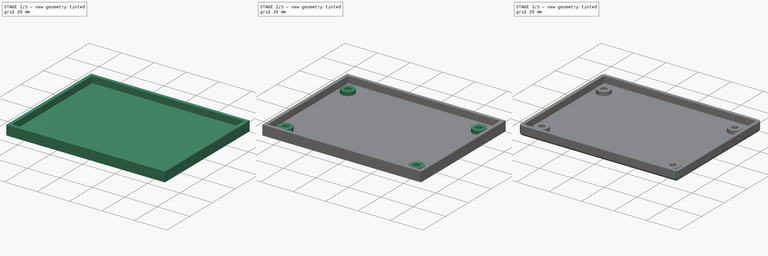
[diagram: build sequence overview — one tinted view per stage of 3, left to right]
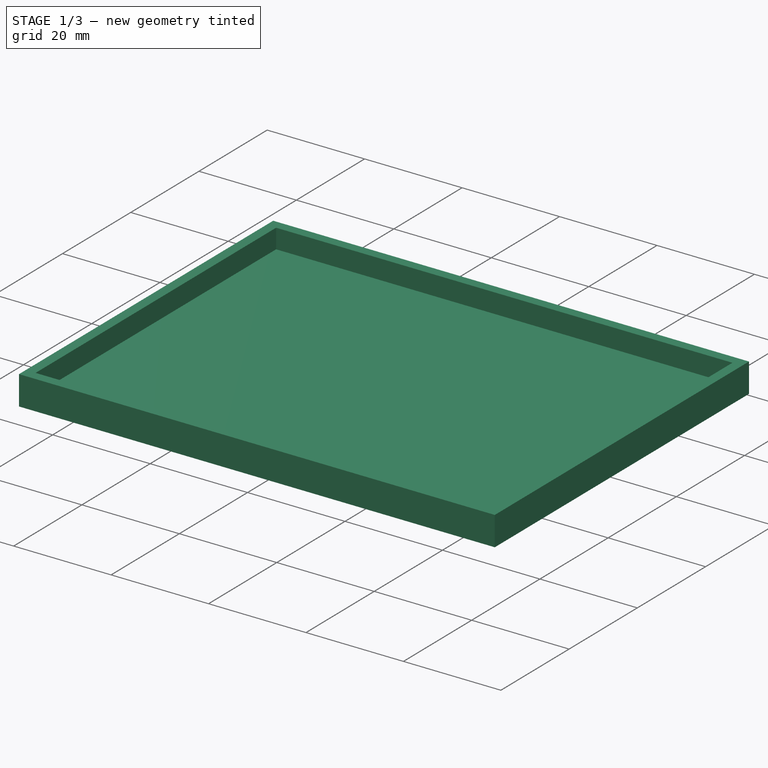
[diagram: stage 1 of 3 — iso view after this stage's code; geometry added in this stage tinted green]
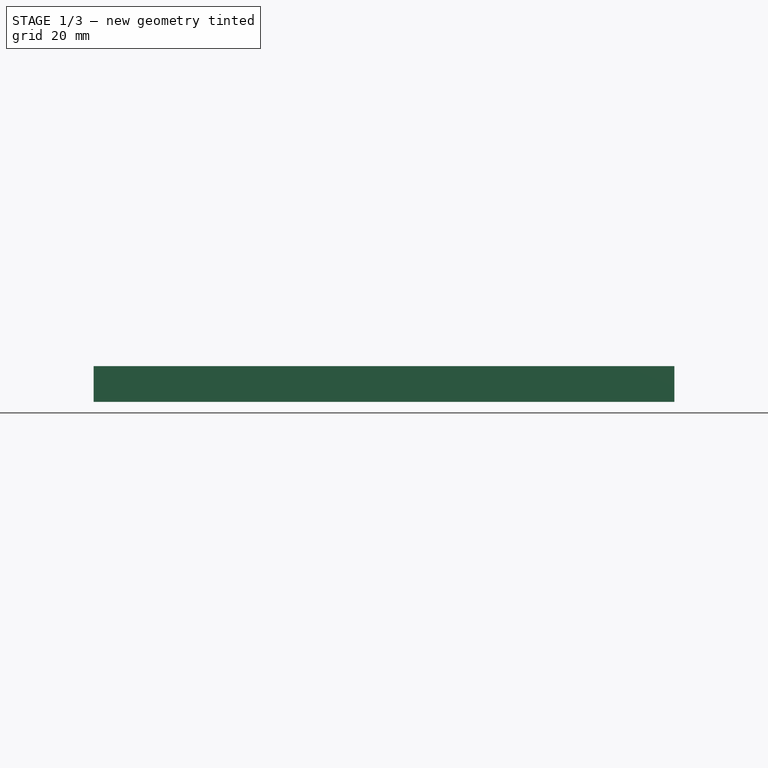
[diagram: stage 1 of 3 — front view after this stage's code; geometry added in this stage tinted green]
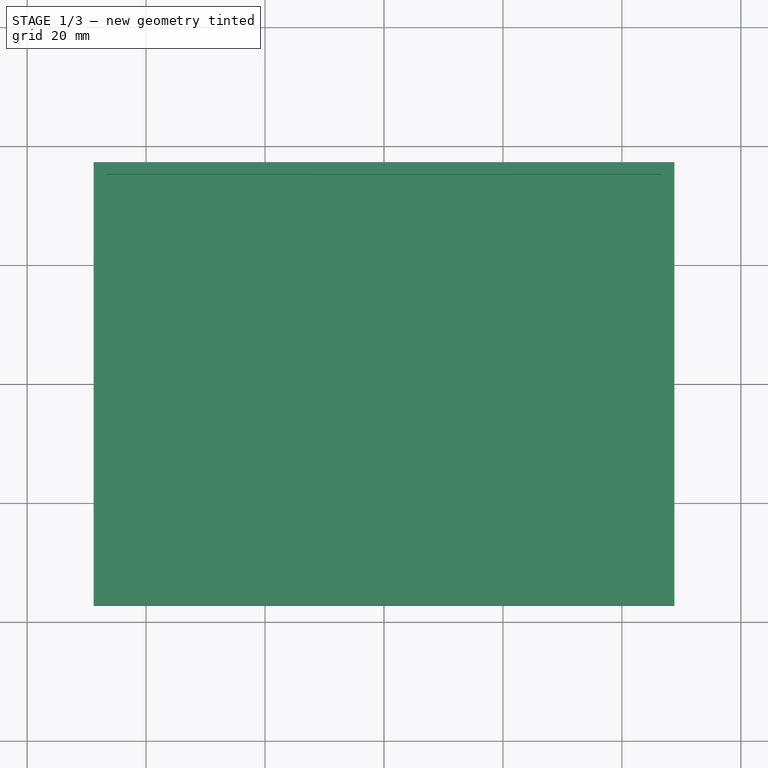
[diagram: stage 1 of 3 — top view after this stage's code; geometry added in this stage tinted green]
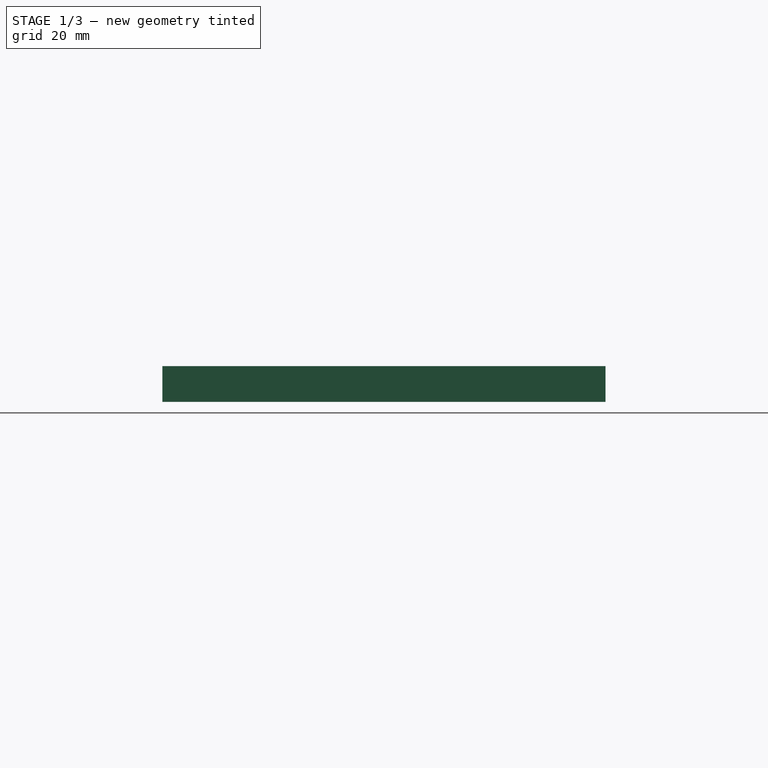
[diagram: stage 1 of 3 — right view after this stage's code; geometry added in this stage tinted green]
FCSTD DOCUMENT  (FreeCAD 0.16RUnknown)
Label: mega-prog-bot
License: All rights reserved
LicenseURL: http://en.wikipedia.org/wiki/All_rights_reserved
objects: Sketcher::SketchObject×4, PartDesign::Pad×2, PartDesign::Pocket×2, PartDesign::Chamfer×1, PartDesign::Fillet×1
note: 14 computed .brp shape members not serialized (recipe doc carries the construction recipe); baked Part::Feature solids carry a one-line shape summary decoded from their .brp

FEATURE [Sketcher::SketchObject] Sketch
  sketch-geometry (6):
    g0: LineSegment StartX=-48.825 StartY=37.25 StartZ=0 EndX=48.825 EndY=37.25 EndZ=0
    g1: LineSegment StartX=48.825 StartY=37.25 StartZ=0 EndX=48.825 EndY=-37.25 EndZ=0
    g2: LineSegment StartX=48.825 StartY=-37.25 StartZ=0 EndX=-48.825 EndY=-37.25 EndZ=0
    g3: LineSegment StartX=-48.825 StartY=-37.25 StartZ=0 EndX=-48.825 EndY=37.25 EndZ=0
    g4: LineSegment [constr] StartX=-48.825 StartY=37.25 StartZ=0 EndX=48.825 EndY=-37.25 EndZ=0
    g5: LineSegment [constr] StartX=48.825 StartY=37.25 StartZ=0 EndX=-48.825 EndY=-37.25 EndZ=0
  constraints (16):
    c: Coincident(g0,g1)
    c: Coincident(g1,g2)
    c: Coincident(g2,g3)
    c: Coincident(g3,g0)
    c: Horizontal(g0)
    c: Horizontal(g2)
    c: Vertical(g1)
    c: Vertical(g3)
    c: Distance(g1) = 74.5
    c: Distance(g0) = 97.65
    c: Coincident(g4,g0)
    c: Coincident(g4,g1)
    c: Coincident(g5,g0)
    c: Coincident(g5,g2)
    c: PointOnObject(g-1,g4)
    c: PointOnObject(g-1,g5)
FEATURE [PartDesign::Pad] Pad
  Length = 6
  Length2 = 100
  Sketch = -> Sketch
  Type = 0
FEATURE [Sketcher::SketchObject] Sketch001
  ExternalGeometry = -> [Pad]
  Placement = pos=(0,0,6) rot=(0,0,1;0rad)
  Support = -> Pad [Face6]
  sketch-geometry (8):
    g0: LineSegment StartX=-46.825 StartY=35.25 StartZ=0 EndX=46.825 EndY=35.25 EndZ=0
    g1: LineSegment StartX=46.825 StartY=35.25 StartZ=0 EndX=46.825 EndY=-35.25 EndZ=0
    g2: LineSegment StartX=46.825 StartY=-35.25 StartZ=0 EndX=-46.825 EndY=-35.25 EndZ=0
    g3: LineSegment StartX=-46.825 StartY=-35.25 StartZ=0 EndX=-46.825 EndY=35.25 EndZ=0
    g4: LineSegment [constr] StartX=-46.825 StartY=35.25 StartZ=0 EndX=-48.825 EndY=35.25 EndZ=0
    g5: LineSegment [constr] StartX=-46.825 StartY=35.25 StartZ=0 EndX=-46.825 EndY=37.25 EndZ=0
    g6: LineSegment [constr] StartX=46.825 StartY=35.25 StartZ=0 EndX=48.825 EndY=35.25 EndZ=0
    g7: LineSegment [constr] StartX=46.825 StartY=-35.25 StartZ=0 EndX=46.825 EndY=-37.25 EndZ=0
  constraints (24):
    c: Coincident(g0,g1)
    c: Coincident(g1,g2)
    c: Coincident(g2,g3)
    c: Coincident(g3,g0)
    c: Horizontal(g0)
    c: Horizontal(g2)
    c: Vertical(g1)
    c: Vertical(g3)
    c: Coincident(g4,g0)
    c: PointOnObject(g4,g-4)
    c: Horizontal(g4)
    c: Coincident(g5,g0)
    c: PointOnObject(g5,g-3)
    c: Vertical(g5)
    c: Coincident(g6,g0)
    c: PointOnObject(g6,g-5)
    c: Horizontal(g6)
    c: Coincident(g7,g1)
    c: PointOnObject(g7,g-6)
    c: Vertical(g7)
    c: Distance(g4) = 2
    c: Equal(g6,g4)
    c: Equal(g7,g5)
    c: Equal(g4,g5)
FEATURE [PartDesign::Pocket] Pocket
  Length = 4
  Sketch = -> Sketch001
  Type = 0
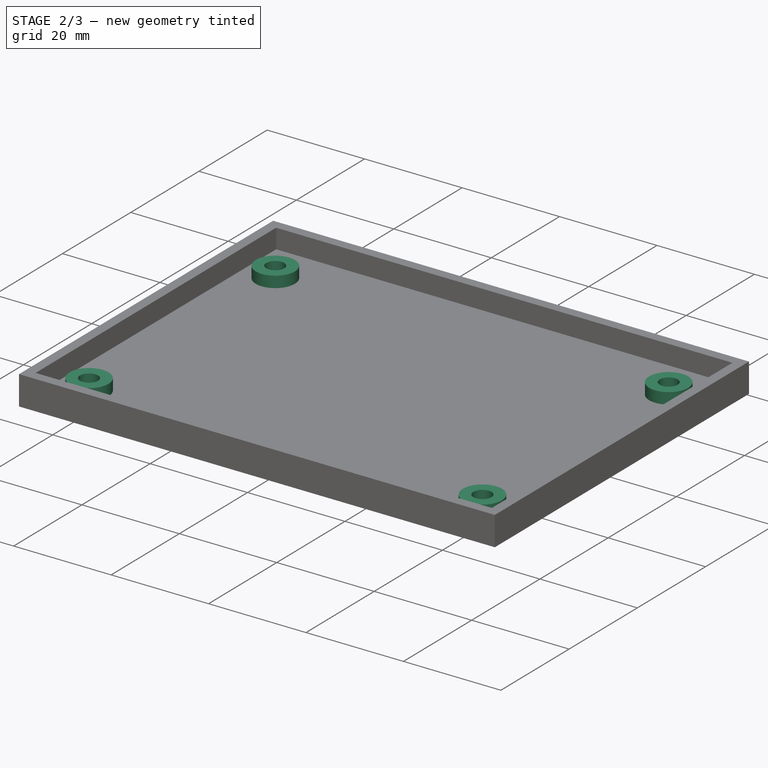
[diagram: stage 2 of 3 — iso view after this stage's code; geometry added in this stage tinted green]
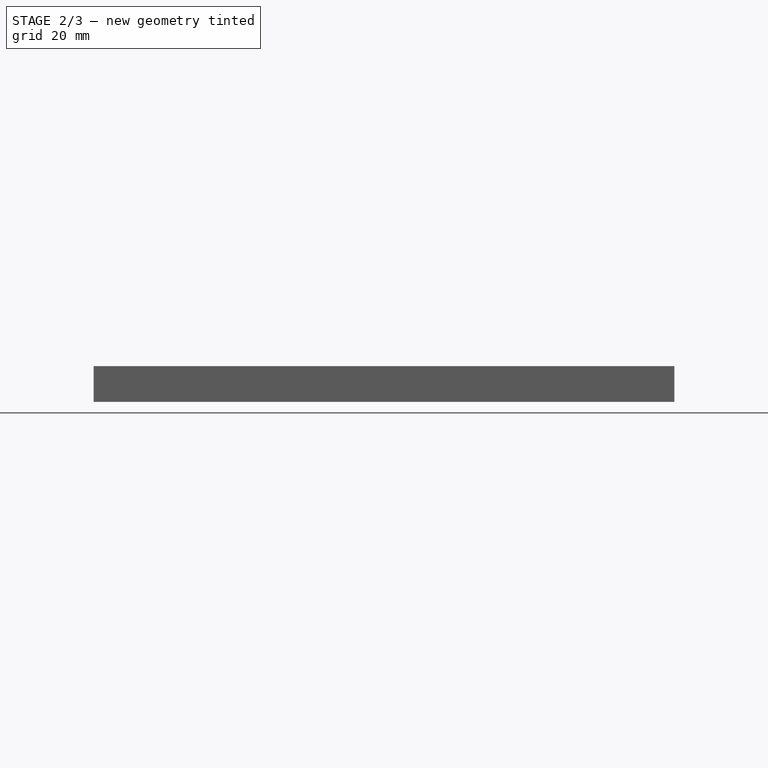
[diagram: stage 2 of 3 — front view after this stage's code; geometry added in this stage tinted green]
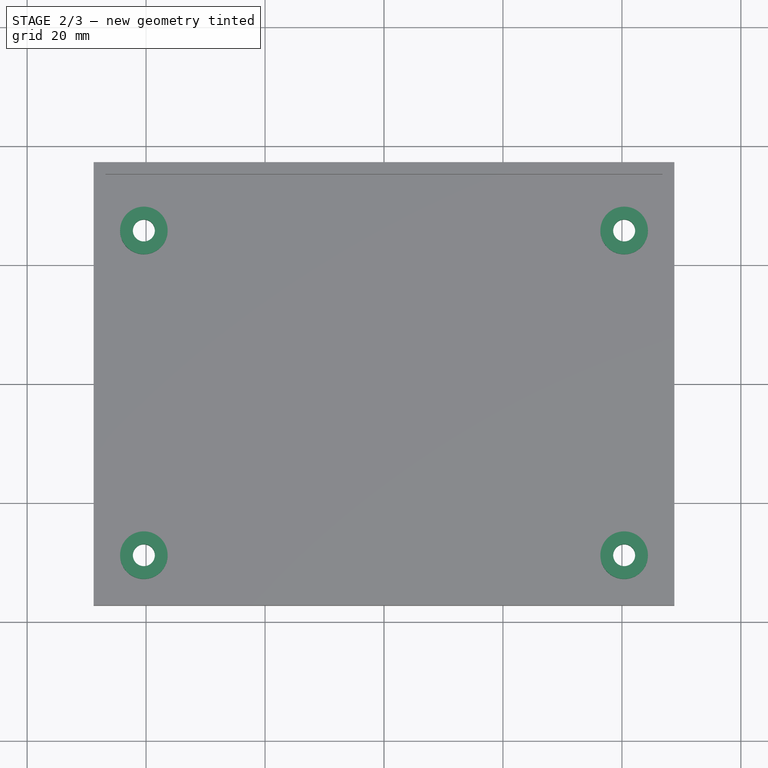
[diagram: stage 2 of 3 — top view after this stage's code; geometry added in this stage tinted green]
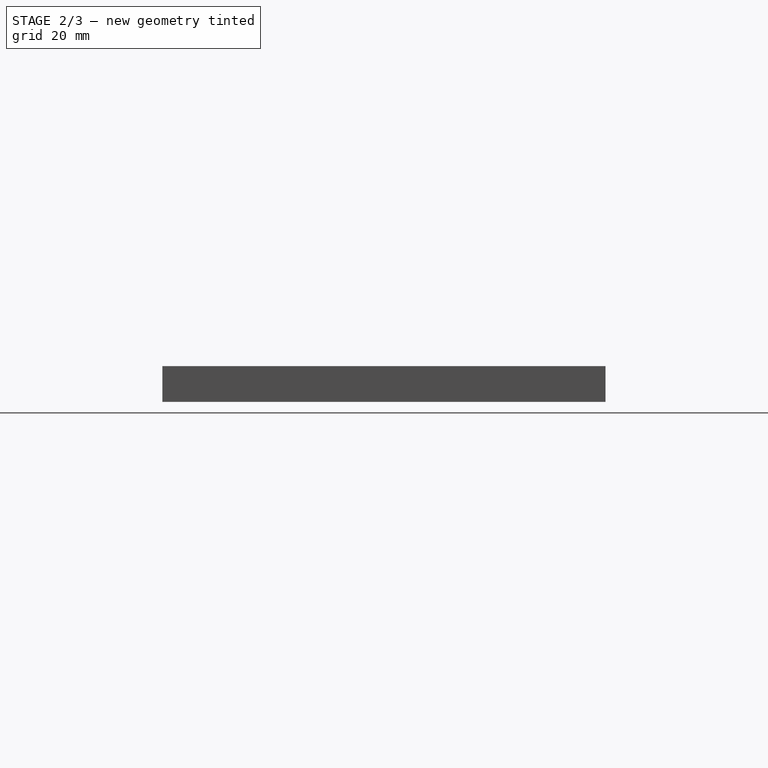
[diagram: stage 2 of 3 — right view after this stage's code; geometry added in this stage tinted green]
FEATURE [Sketcher::SketchObject] Sketch002
  ExternalGeometry = -> [Pocket]
  Placement = pos=(0,0,2) rot=(0,0,1;0rad)
  Support = -> Pocket [Face11]
  sketch-geometry (12):
    g0: Circle CenterX=-40.375 CenterY=25.8 CenterZ=0 NormalX=0 NormalY=0 NormalZ=1 Radius=4
    g1: Circle CenterX=40.375 CenterY=25.8 CenterZ=0 NormalX=0 NormalY=0 NormalZ=1 Radius=4
    g2: Circle CenterX=40.375 CenterY=-28.8 CenterZ=0 NormalX=0 NormalY=0 NormalZ=1 Radius=4
    g3: Circle CenterX=-40.375 CenterY=-28.8 CenterZ=0 NormalX=0 NormalY=0 NormalZ=1 Radius=4
    g4: LineSegment [constr] StartX=-40.375 StartY=25.8 StartZ=0 EndX=-40.375 EndY=-28.8 EndZ=0
    g5: LineSegment [constr] StartX=-40.375 StartY=25.8 StartZ=0 EndX=40.375 EndY=25.8 EndZ=0
    g6: LineSegment [constr] StartX=40.375 StartY=25.8 StartZ=0 EndX=40.375 EndY=-28.8 EndZ=0
    g7: LineSegment [constr] StartX=-40.375 StartY=-28.8 StartZ=0 EndX=40.375 EndY=-28.8 EndZ=0
    g8: LineSegment [constr] StartX=-40.375 StartY=25.8 StartZ=0 EndX=-40.375 EndY=35.25 EndZ=0
    g9: LineSegment [constr] StartX=-40.375 StartY=25.8 StartZ=0 EndX=-46.825 EndY=25.8 EndZ=0
    g10: LineSegment [constr] StartX=40.375 StartY=25.8 StartZ=0 EndX=46.825 EndY=25.8 EndZ=0
    g11: LineSegment [constr] StartX=40.375 StartY=-28.8 StartZ=0 EndX=40.375 EndY=-35.25 EndZ=0
  constraints (32):
    c: Radius(g0) = 4
    c: Equal(g1,g2)
    c: Equal(g2,g3)
    c: Equal(g3,g0)
    c: Coincident(g4,g0)
    c: Coincident(g4,g3)
    c: Vertical(g4)
    c: Coincident(g5,g0)
    c: Coincident(g5,g1)
    c: Horizontal(g5)
    c: Coincident(g6,g1)
    c: Coincident(g6,g2)
    c: Vertical(g6)
    c: Coincident(g7,g3)
    c: Coincident(g7,g2)
    c: Horizontal(g7)
    c: Coincident(g8,g0)
    c: PointOnObject(g8,g-3)
    c: Vertical(g8)
    c: Coincident(g9,g0)
    c: PointOnObject(g9,g-4)
    c: Horizontal(g9)
    c: Coincident(g10,g1)
    c: PointOnObject(g10,g-5)
    c: Horizontal(g10)
    c: Coincident(g11,g2)
    c: PointOnObject(g11,g-6)
    c: Vertical(g11)
    c: Distance(g8) = 9.45
    c: Distance(g9) = 6.45
    c: Equal(g9,g10)
    c: Equal(g10,g11)
FEATURE [PartDesign::Pad] Pad001
  Length = 2.3
  Length2 = 100
  Sketch = -> Sketch002
  Type = 0
FEATURE [Sketcher::SketchObject] Sketch003
  ExternalGeometry = -> [Pad001]
  Placement = pos=(0,0,4.3) rot=(0,0,1;0rad)
  Support = -> Pad001 [Face17]
  sketch-geometry (4):
    g0: Circle CenterX=-40.375 CenterY=25.8 CenterZ=0 NormalX=0 NormalY=0 NormalZ=1 Radius=1.85
    g1: Circle CenterX=40.375 CenterY=-28.8 CenterZ=0 NormalX=0 NormalY=0 NormalZ=1 Radius=1.85
    g2: Circle CenterX=40.375 CenterY=25.8 CenterZ=0 NormalX=0 NormalY=0 NormalZ=1 Radius=1.85
    g3: Circle CenterX=-40.375 CenterY=-28.8 CenterZ=0 NormalX=0 NormalY=0 NormalZ=1 Radius=1.85
  constraints (8):
    c: Coincident(g0,g-3)
    c: Coincident(g1,g-4)
    c: Coincident(g2,g-6)
    c: Coincident(g3,g-5)
    c: Radius(g0) = 1.85
    c: Equal(g0,g2)
    c: Equal(g2,g1)
    c: Equal(g1,g3)
FEATURE [PartDesign::Pocket] Pocket001
  Length = 5
  Sketch = -> Sketch003
  Type = 1
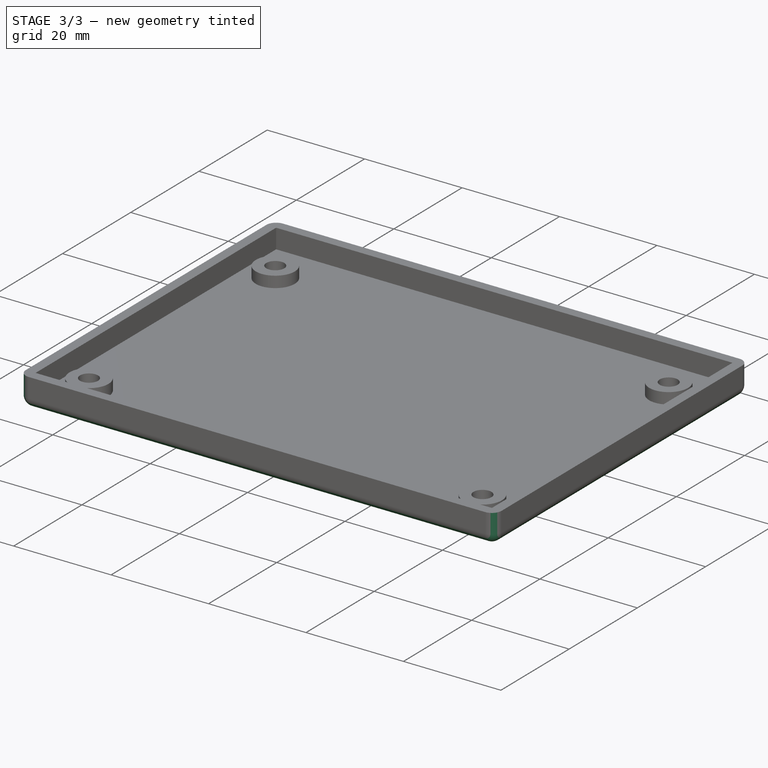
[diagram: stage 3 of 3 — iso view after this stage's code; geometry added in this stage tinted green]
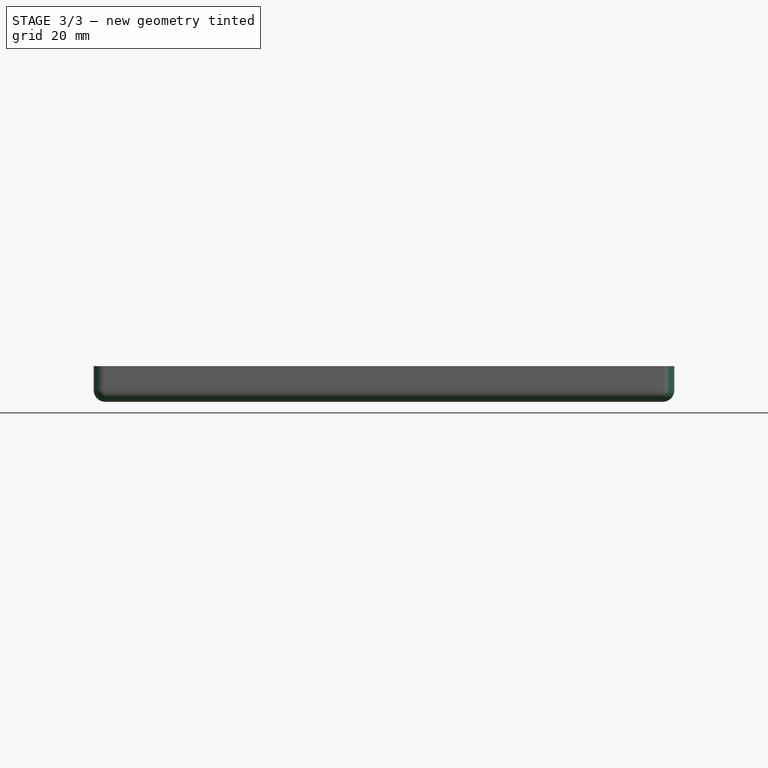
[diagram: stage 3 of 3 — front view after this stage's code; geometry added in this stage tinted green]
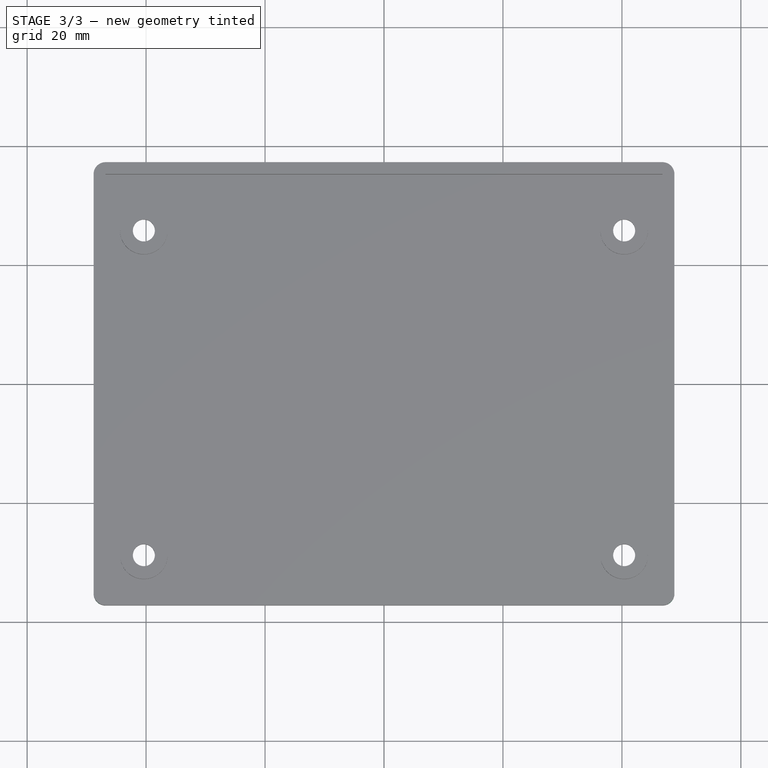
[diagram: stage 3 of 3 — top view after this stage's code; geometry added in this stage tinted green]
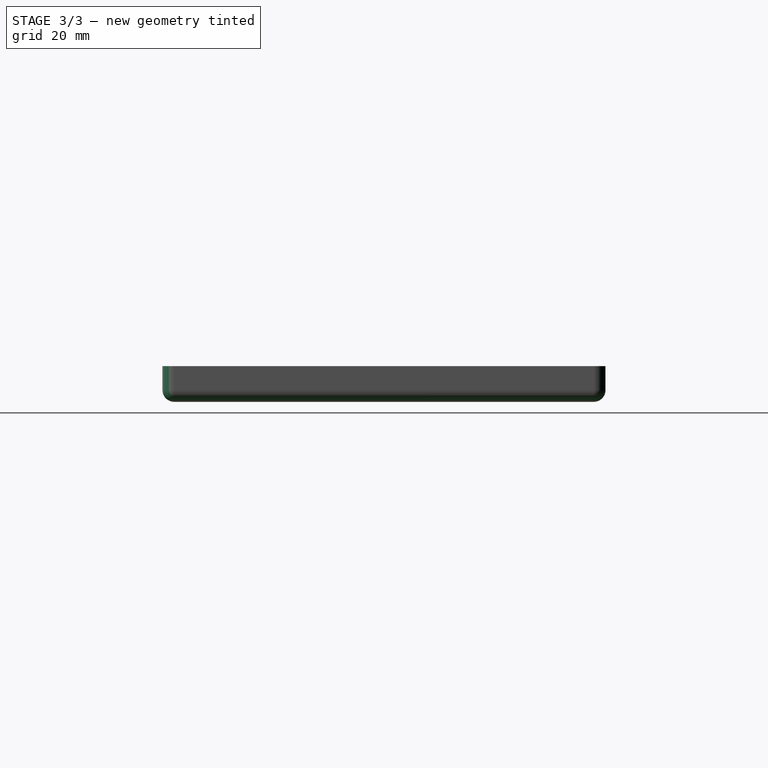
[diagram: stage 3 of 3 — right view after this stage's code; geometry added in this stage tinted green]
FEATURE [PartDesign::Chamfer] Chamfer
  Base = -> Pocket001 [Edge15,Edge12,Edge14,Edge13]
  Size = 1.5
FEATURE [PartDesign::Fillet] Fillet
  Base = -> Chamfer [Edge4,Edge16,Edge5,Edge2,Edge3,Edge11,Edge14,Edge12]
  Radius = 2
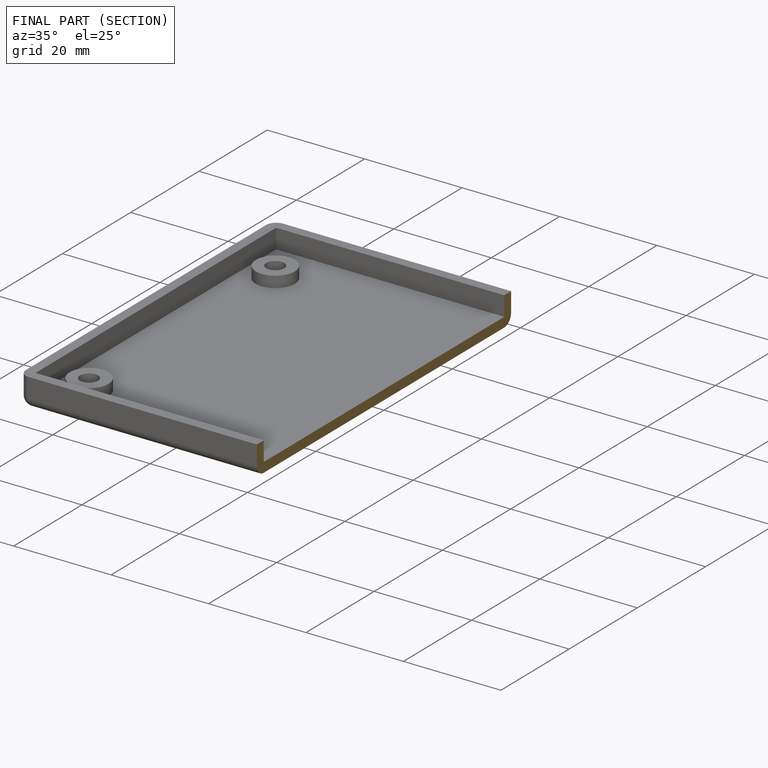
[diagram: finished part — half-section view (interior)]
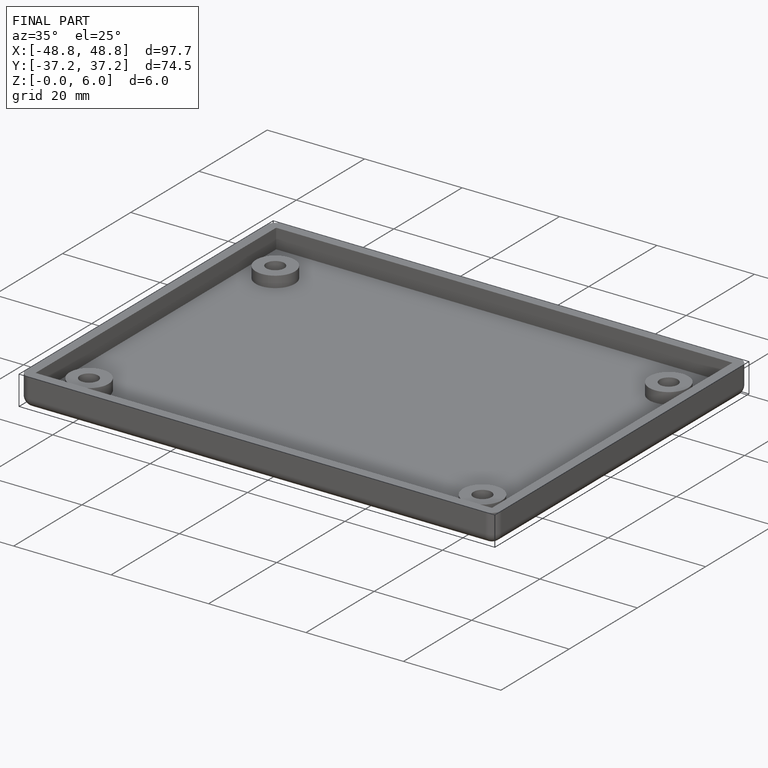
[diagram: finished part — iso view with bounding-box wireframe]
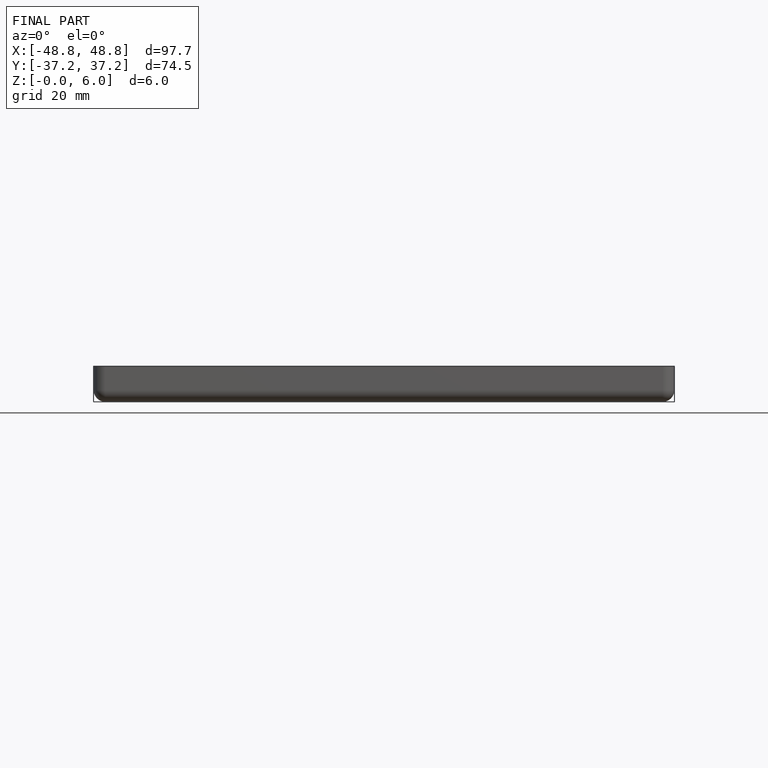
[diagram: finished part — front view with bounding-box wireframe]
